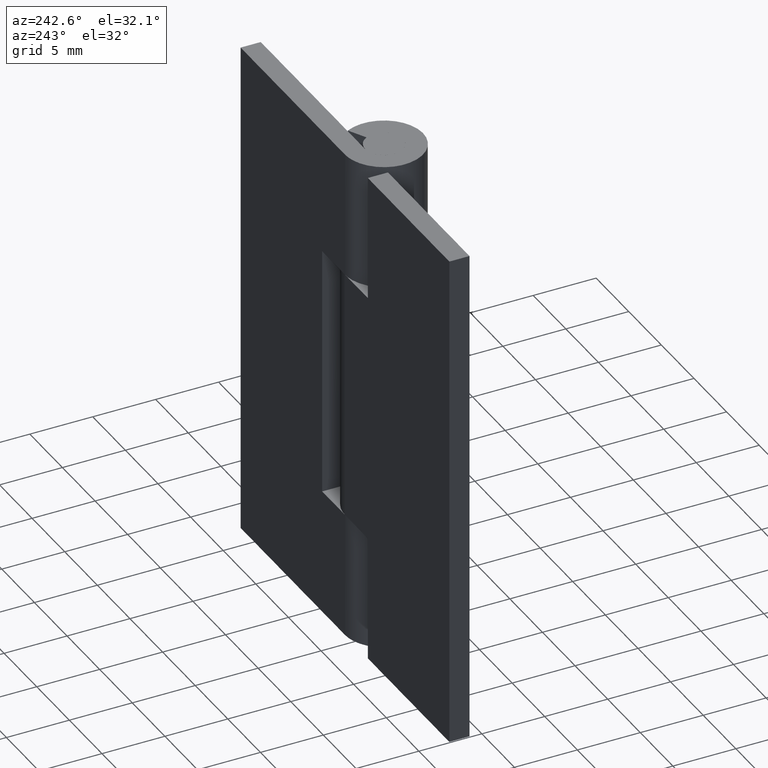
[diagram: clean part render]
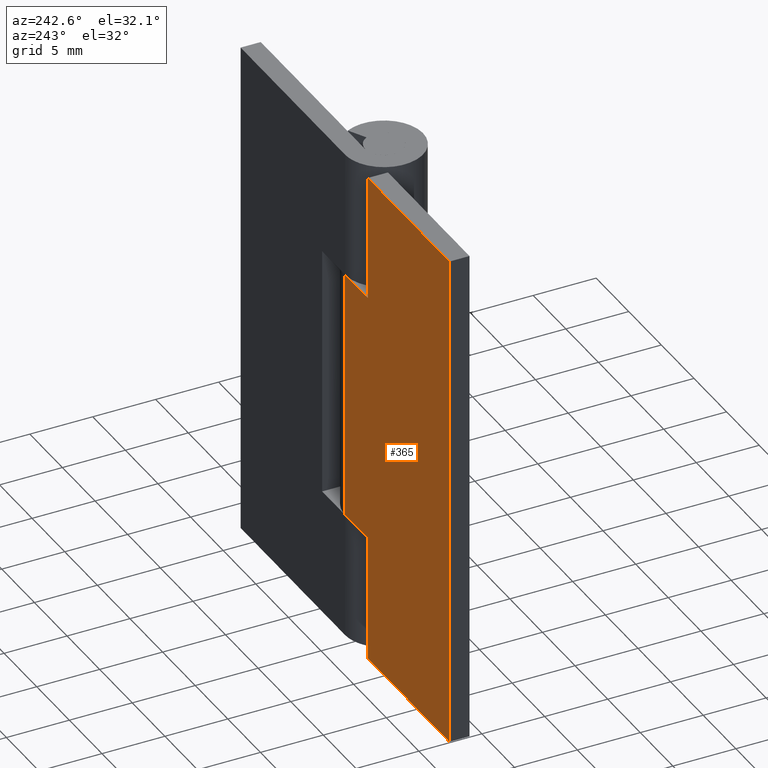
[diagram: same view with one face highlighted and labeled with its STEP entity id]
A machine part, auxiliary view. The second image highlights one B-rep face of the part: STEP entity #365.
In plain terms, the highlighted face is a freeform B-spline surface patch.
Its self-contained STEP definition (entity closure, byte-faithful):
#58=CARTESIAN_POINT('',(-3.500000000000100,3.099998000000050,0.0));
#59=VERTEX_POINT('',#58);
#65=CARTESIAN_POINT('',(-3.500000000000100,3.099998000000050,10.0));
#66=VERTEX_POINT('',#65);
#67=CARTESIAN_POINT('',(-3.500000000000100,3.099998000000050,0.0));
#68=CARTESIAN_POINT('',(-3.500000000000100,3.099998000000050,10.0));
#69=QUASI_UNIFORM_CURVE('',1,(#67,#68),.UNSPECIFIED.,.F.,.U.);
#70=EDGE_CURVE('',#59,#66,#69,.T.);
#93=CARTESIAN_POINT('',(-0.003521362805221,3.099998000000050,10.0));
#94=VERTEX_POINT('',#93);
#95=CARTESIAN_POINT('',(-3.500000000000100,3.099998000000050,10.0));
#96=CARTESIAN_POINT('',(-0.003521362805221,3.099998000000050,10.0));
#97=QUASI_UNIFORM_CURVE('',1,(#95,#96),.UNSPECIFIED.,.F.,.U.);
#98=EDGE_CURVE('',#66,#94,#97,.T.);
#171=CARTESIAN_POINT('',(-3.500000000000100,3.099998000000050,30.0));
#172=VERTEX_POINT('',#171);
#178=CARTESIAN_POINT('',(-3.500000000000100,3.099998000000000,40.0));
#179=VERTEX_POINT('',#178);
#180=CARTESIAN_POINT('',(-3.500000000000100,3.099998000000000,40.0));
#181=CARTESIAN_POINT('',(-3.500000000000100,3.099998000000050,30.0));
#182=QUASI_UNIFORM_CURVE('',1,(#180,#181),.UNSPECIFIED.,.F.,.U.);
#183=EDGE_CURVE('',#179,#172,#182,.T.);
#254=CARTESIAN_POINT('',(-0.003521362805221,3.099998000000050,30.0));
#255=VERTEX_POINT('',#254);
#261=CARTESIAN_POINT('',(-3.500000000000100,3.099998000000050,30.0));
#262=CARTESIAN_POINT('',(-0.003521362805221,3.099998000000050,30.0));
#263=QUASI_UNIFORM_CURVE('',1,(#261,#262),.UNSPECIFIED.,.F.,.U.);
#264=EDGE_CURVE('',#172,#255,#263,.T.);
#275=CARTESIAN_POINT('',(-16.0,3.099998000000000,0.0));
#276=VERTEX_POINT('',#275);
#291=CARTESIAN_POINT('',(-16.0,3.099998000000000,40.0));
#292=VERTEX_POINT('',#291);
#298=CARTESIAN_POINT('',(-16.0,3.099998000000000,40.0));
#299=CARTESIAN_POINT('',(-16.0,3.099998000000000,0.0));
#300=QUASI_UNIFORM_CURVE('',1,(#298,#299),.UNSPECIFIED.,.F.,.U.);
#301=EDGE_CURVE('',#292,#276,#300,.T.);
#312=CARTESIAN_POINT('',(-3.500000000000100,3.099998000000000,40.0));
#313=CARTESIAN_POINT('',(-16.0,3.099998000000000,40.0));
#314=QUASI_UNIFORM_CURVE('',1,(#312,#313),.UNSPECIFIED.,.F.,.U.);
#315=EDGE_CURVE('',#179,#292,#314,.T.);
#331=CARTESIAN_POINT('',(-3.500000000000100,3.099998000000050,0.0));
#332=CARTESIAN_POINT('',(-16.0,3.099998000000000,0.0));
#333=QUASI_UNIFORM_CURVE('',1,(#331,#332),.UNSPECIFIED.,.F.,.U.);
#334=EDGE_CURVE('',#59,#276,#333,.T.);
#346=CARTESIAN_POINT('',(-16.799024076923601,3.099998000000000,41.997999922472239));
#347=CARTESIAN_POINT('',(-16.799024076923601,3.099998000000000,-1.998000995355844));
#348=CARTESIAN_POINT('',(0.795503143177371,3.099998000000000,41.997999922472239));
#349=CARTESIAN_POINT('',(0.795503143177371,3.099998000000000,-1.998000995355844));
#350=B_SPLINE_SURFACE_WITH_KNOTS('',1,1,((#346,#348),(#347,#349)),.UNSPECIFIED.,.F.,.F.,.U.,(2,2),(2,2),(0.0,43.996000917828077),(0.0,17.594527220100971),.UNSPECIFIED.);
#351=ORIENTED_EDGE('',*,*,#70,.F.);
#352=ORIENTED_EDGE('',*,*,#334,.T.);
#353=ORIENTED_EDGE('',*,*,#301,.F.);
#354=ORIENTED_EDGE('',*,*,#315,.F.);
#355=ORIENTED_EDGE('',*,*,#183,.T.);
#356=ORIENTED_EDGE('',*,*,#264,.T.);
#357=CARTESIAN_POINT('',(-0.003521362805221,3.099998000000050,30.0));
#358=CARTESIAN_POINT('',(-0.003521362805221,3.099998000000050,10.0));
#359=QUASI_UNIFORM_CURVE('',1,(#357,#358),.UNSPECIFIED.,.F.,.U.);
#360=EDGE_CURVE('',#255,#94,#359,.T.);
#361=ORIENTED_EDGE('',*,*,#360,.T.);
#362=ORIENTED_EDGE('',*,*,#98,.F.);
#363=EDGE_LOOP('',(#351,#352,#353,#354,#355,#356,#361,#362));
#364=FACE_OUTER_BOUND('',#363,.T.);
#365=ADVANCED_FACE('',(#364),#350,.F.);